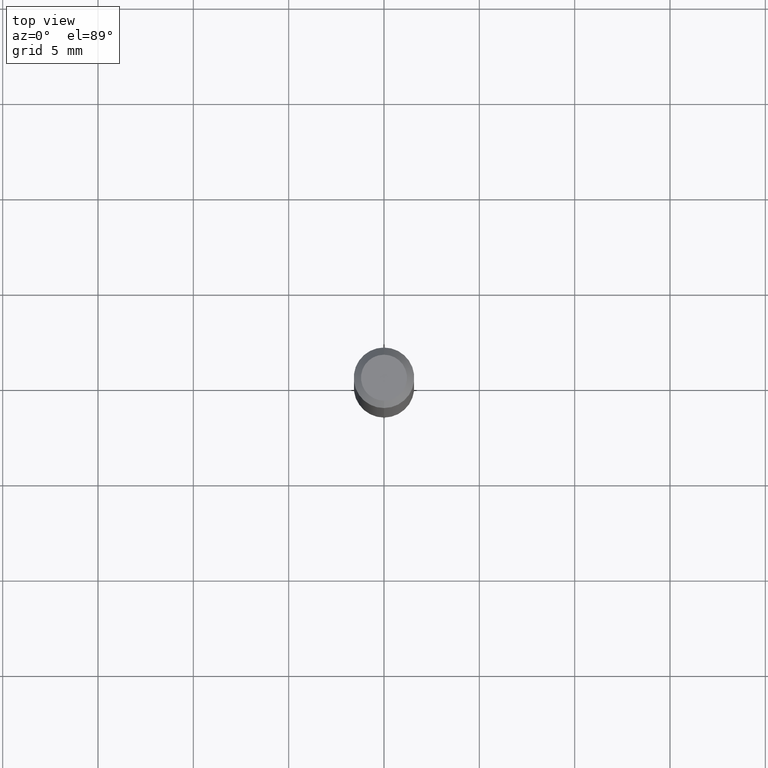
[diagram: clean part render]
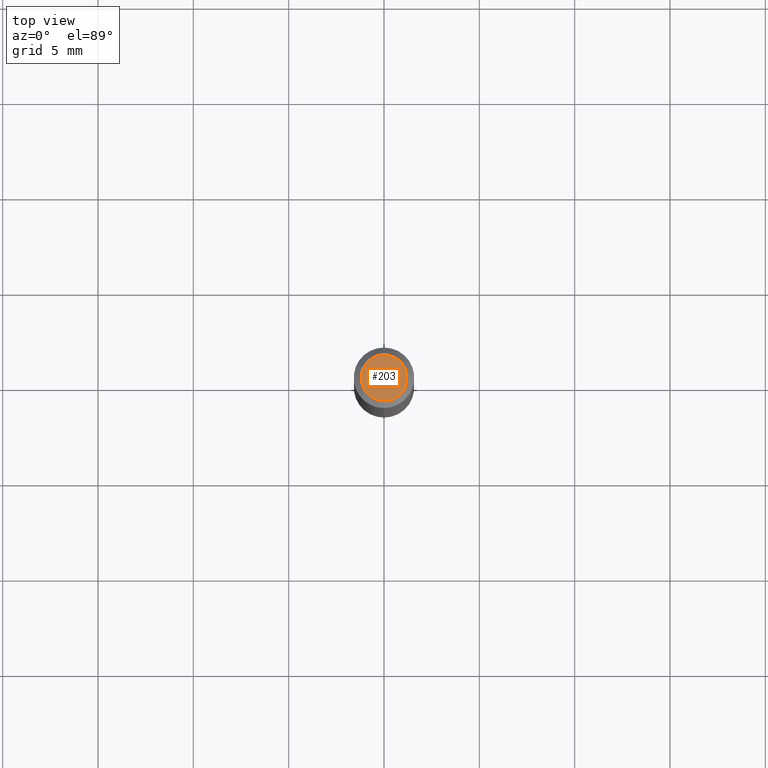
[diagram: same view with one face highlighted and labeled with its STEP entity id]
A machine part, top view. The second image highlights one B-rep face of the part: STEP entity #203.
In plain terms, the highlighted planar face has unit normal (0, -0, -1).
Its self-contained STEP definition (entity closure, byte-faithful):
#41 = DIRECTION ( 'NONE',  ( -6.982962677686266711E-15, -1.000000000000000000, 3.491500524170106041E-15 ) ) ;
#68 = EDGE_LOOP ( 'NONE', ( #145, #236 ) ) ;
#76 = CARTESIAN_POINT ( 'NONE',  ( 2.166528792165285083E-46, -3.093262868418392808E-32, -8.859408288800502877E-18 ) ) ;
#85 = AXIS2_PLACEMENT_3D ( 'NONE', #168, #486, #211 ) ;
#104 = EDGE_CURVE ( 'NONE', #386, #109, #407, .T. ) ;
#109 = VERTEX_POINT ( 'NONE', #467 ) ;
#138 = CARTESIAN_POINT ( 'NONE',  ( -3.773273898774340269E-16, -0.04749999999999999362, 1.569868666092795110E-16 ) ) ;
#145 = ORIENTED_EDGE ( 'NONE', *, *, #471, .T. ) ;
#168 = CARTESIAN_POINT ( 'NONE',  ( 3.316907271900976096E-16, 0.04749999999999999362, -1.702759790424802506E-16 ) ) ;
#203 = ADVANCED_FACE ( 'NONE', ( #332 ), #208, .F. ) ;
#208 = PLANE ( 'NONE',  #85 ) ;
#211 = DIRECTION ( 'NONE',  ( 6.982962677686265922E-15, 1.000000000000000000, -3.491500524170106041E-15 ) ) ;
#236 = ORIENTED_EDGE ( 'NONE', *, *, #104, .T. ) ;
#238 = CARTESIAN_POINT ( 'NONE',  ( 2.166528792165285083E-46, -3.093262868418392808E-32, -8.859408288800502877E-18 ) ) ;
#274 = DIRECTION ( 'NONE',  ( -2.445455409142924430E-29, 3.491500524170105647E-15, 1.000000000000000000 ) ) ;
#332 = FACE_OUTER_BOUND ( 'NONE', #68, .T. ) ;
#343 = AXIS2_PLACEMENT_3D ( 'NONE', #238, #274, #430 ) ;
#386 = VERTEX_POINT ( 'NONE', #138 ) ;
#407 = CIRCLE ( 'NONE', #424, 0.04749999999999999362 ) ;
#424 = AXIS2_PLACEMENT_3D ( 'NONE', #76, #507, #41 ) ;
#430 = DIRECTION ( 'NONE',  ( -6.982962677686266711E-15, -1.000000000000000000, 3.491500524170106041E-15 ) ) ;
#459 = CIRCLE ( 'NONE', #343, 0.04749999999999999362 ) ;
#467 = CARTESIAN_POINT ( 'NONE',  ( 3.840629472727447874E-16, 0.04749999999999999362, -1.747056831868805136E-16 ) ) ;
#471 = EDGE_CURVE ( 'NONE', #109, #386, #459, .T. ) ;
#486 = DIRECTION ( 'NONE',  ( 2.445455409142923869E-29, -3.491500524170106041E-15, -1.000000000000000000 ) ) ;
#507 = DIRECTION ( 'NONE',  ( -2.445455409142924430E-29, 3.491500524170105647E-15, 1.000000000000000000 ) ) ;